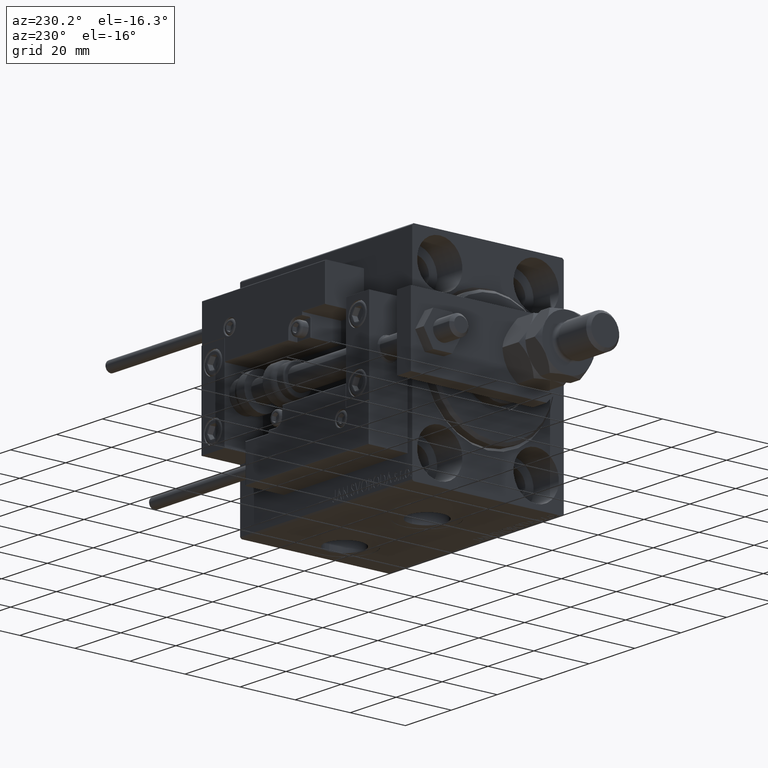
[diagram: clean part render]
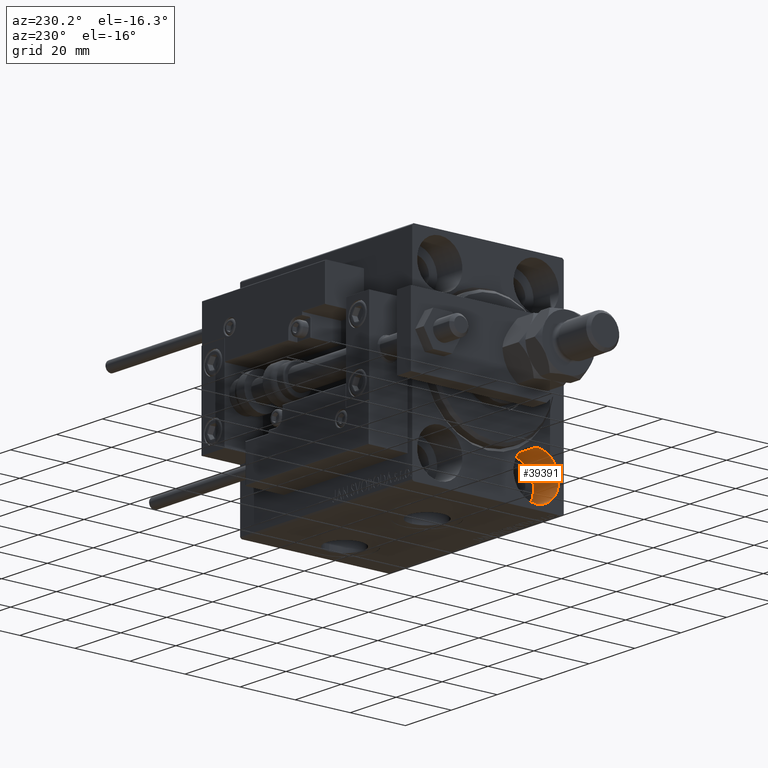
[diagram: same view with one face highlighted and labeled with its STEP entity id]
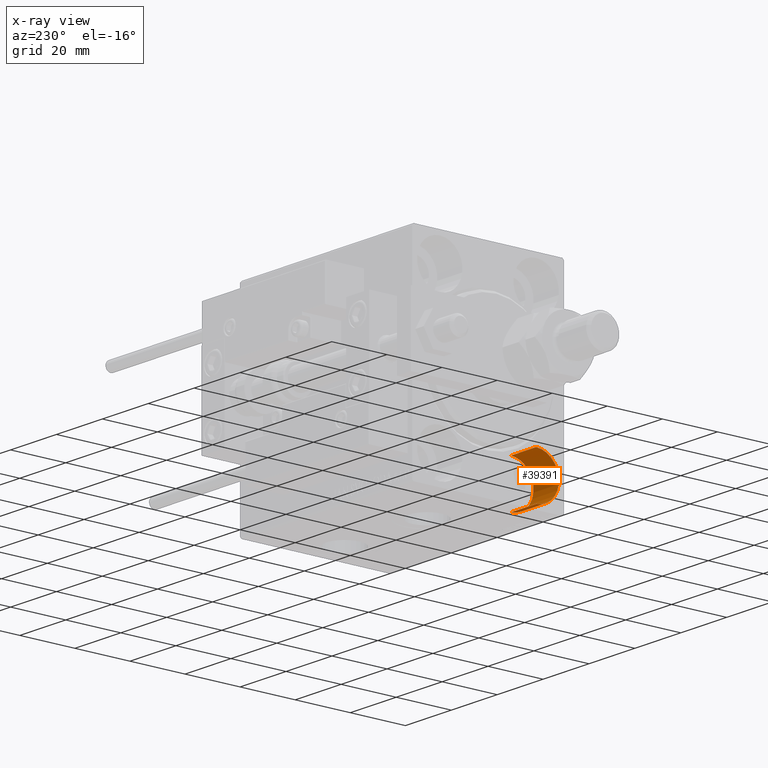
[diagram: x-ray of the same camera — body ghosted, the highlighted face saturated]
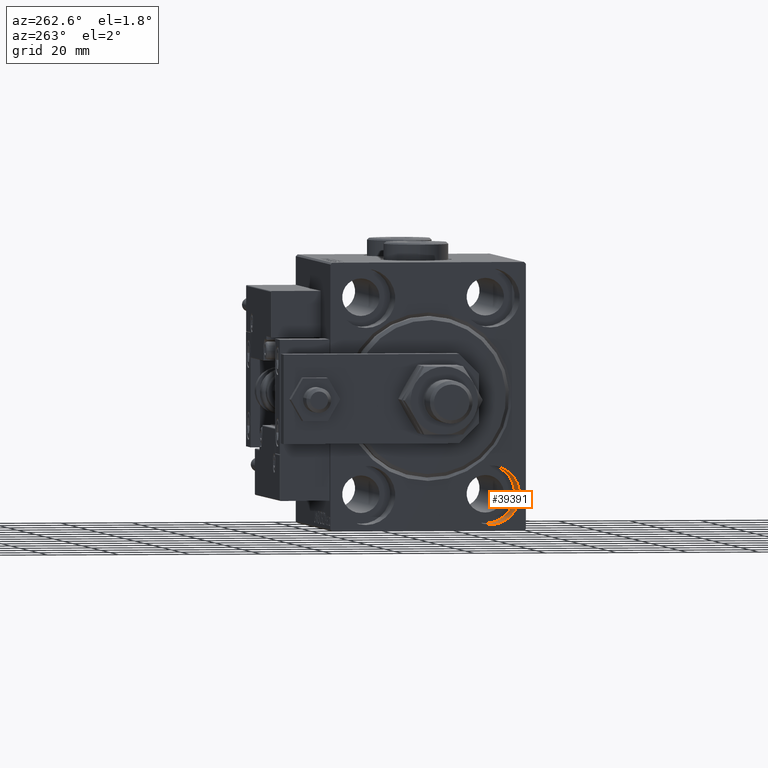
[diagram: same view with one face highlighted and labeled with its STEP entity id]
A machine part, auxiliary view. The second image highlights one B-rep face of the part: STEP entity #39391.
The next image is the same camera in x-ray: the body ghosted, the highlighted face saturated — about 0% of this face is hidden behind the body in this view.
A second angle (auxiliary view) of the same face is appended — the face is thin or edge-on in the first view.
In plain terms, the highlighted cylindrical surface (edge-blend (fillet) strip) has radius 8.25 mm, axis along (-1, -0, -0).
Its self-contained STEP definition (entity closure, byte-faithful):
#284 = AXIS2_PLACEMENT_3D ( 'NONE', #41364, #32782, #36253 ) ;
#2595 = AXIS2_PLACEMENT_3D ( 'NONE', #10063, #25678, #22693 ) ;
#3989 = LINE ( 'NONE', #44796, #44458 ) ;
#4824 = VECTOR ( 'NONE', #38644, 1000.000000000000000 ) ;
#4914 = VERTEX_POINT ( 'NONE', #23053 ) ;
#7577 = VERTEX_POINT ( 'NONE', #29481 ) ;
#8020 = DIRECTION ( 'NONE',  ( -1.000000000000000000, -0.000000000000000000, -0.000000000000000000 ) ) ;
#8675 = VERTEX_POINT ( 'NONE', #9167 ) ;
#9167 = CARTESIAN_POINT ( 'NONE',  ( 11.00000000000000000, -17.50000000000000355, -35.75000000000000711 ) ) ;
#10063 = CARTESIAN_POINT ( 'NONE',  ( 11.00000000000000000, -17.50000000000000355, -27.50000000000000355 ) ) ;
#11585 = ORIENTED_EDGE ( 'NONE', *, *, #22590, .F. ) ;
#12220 = AXIS2_PLACEMENT_3D ( 'NONE', #31439, #51381, #47593 ) ;
#17514 = ORIENTED_EDGE ( 'NONE', *, *, #49887, .T. ) ;
#19682 = CARTESIAN_POINT ( 'NONE',  ( 0.000000000000000000, -17.50000000000000355, -19.25000000000000355 ) ) ;
#22301 = CARTESIAN_POINT ( 'NONE',  ( 11.00000000000000000, -17.50000000000000355, -19.25000000000000355 ) ) ;
#22590 = EDGE_CURVE ( 'NONE', #4914, #52100, #51570, .T. ) ;
#22693 = DIRECTION ( 'NONE',  ( 0.000000000000000000, 0.000000000000000000, 1.000000000000000000 ) ) ;
#23053 = CARTESIAN_POINT ( 'NONE',  ( 11.00000000000000000, -17.50000000000000355, -19.25000000000000355 ) ) ;
#25678 = DIRECTION ( 'NONE',  ( -1.000000000000000000, -0.000000000000000000, -0.000000000000000000 ) ) ;
#25940 = CYLINDRICAL_SURFACE ( 'NONE', #2595, 8.250000000000000000 ) ;
#29481 = CARTESIAN_POINT ( 'NONE',  ( 0.000000000000000000, -17.50000000000000355, -35.75000000000000711 ) ) ;
#31439 = CARTESIAN_POINT ( 'NONE',  ( 11.00000000000000000, -17.50000000000000355, -27.50000000000000355 ) ) ;
#32782 = DIRECTION ( 'NONE',  ( -1.000000000000000000, 0.000000000000000000, 0.000000000000000000 ) ) ;
#34503 = CIRCLE ( 'NONE', #12220, 8.250000000000000000 ) ;
#36253 = DIRECTION ( 'NONE',  ( 0.000000000000000000, 0.000000000000000000, 1.000000000000000000 ) ) ;
#37097 = EDGE_CURVE ( 'NONE', #8675, #7577, #3989, .T. ) ;
#37966 = CIRCLE ( 'NONE', #284, 8.250000000000000000 ) ;
#38644 = DIRECTION ( 'NONE',  ( -1.000000000000000000, -0.000000000000000000, -0.000000000000000000 ) ) ;
#39391 = ADVANCED_FACE ( 'NONE', ( #50915 ), #25940, .F. ) ;
#39432 = ORIENTED_EDGE ( 'NONE', *, *, #48859, .F. ) ;
#39699 = EDGE_LOOP ( 'NONE', ( #39432, #42075, #17514, #11585 ) ) ;
#41364 = CARTESIAN_POINT ( 'NONE',  ( 0.000000000000000000, -17.50000000000000355, -27.50000000000000355 ) ) ;
#42075 = ORIENTED_EDGE ( 'NONE', *, *, #37097, .T. ) ;
#44458 = VECTOR ( 'NONE', #8020, 1000.000000000000000 ) ;
#44796 = CARTESIAN_POINT ( 'NONE',  ( 11.00000000000000000, -17.50000000000000355, -35.75000000000000711 ) ) ;
#47593 = DIRECTION ( 'NONE',  ( 0.000000000000000000, 0.000000000000000000, 1.000000000000000000 ) ) ;
#48859 = EDGE_CURVE ( 'NONE', #8675, #4914, #34503, .T. ) ;
#49887 = EDGE_CURVE ( 'NONE', #7577, #52100, #37966, .T. ) ;
#50915 = FACE_OUTER_BOUND ( 'NONE', #39699, .T. ) ;
#51381 = DIRECTION ( 'NONE',  ( -1.000000000000000000, 0.000000000000000000, 0.000000000000000000 ) ) ;
#51570 = LINE ( 'NONE', #22301, #4824 ) ;
#52100 = VERTEX_POINT ( 'NONE', #19682 ) ;